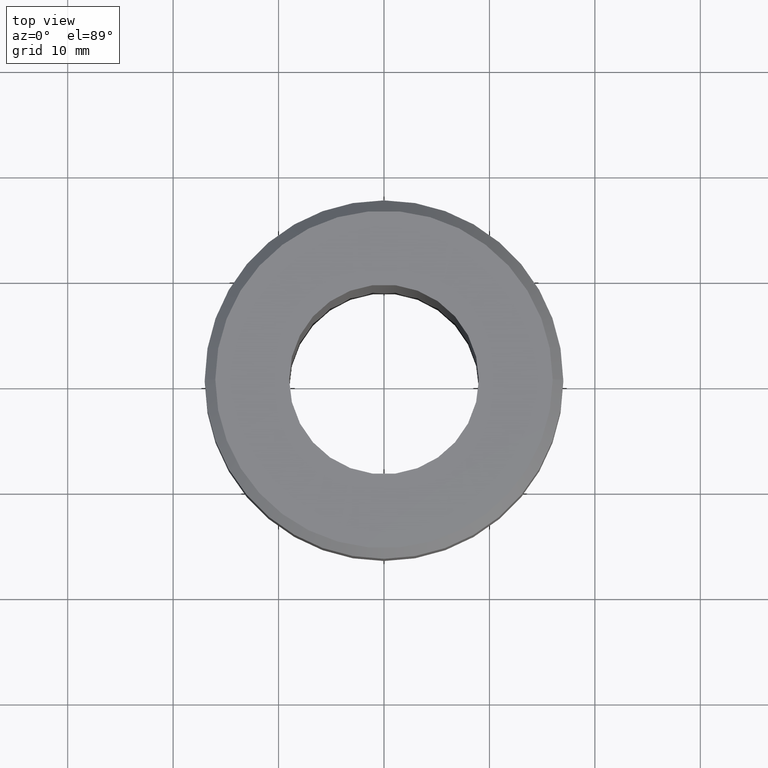
[diagram: clean part render]
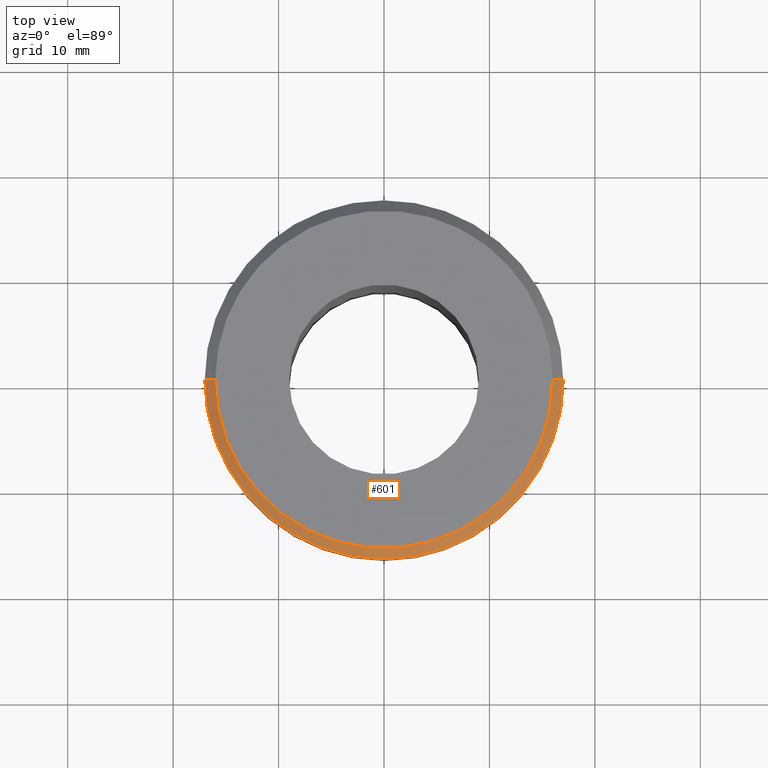
[diagram: same view with one face highlighted and labeled with its STEP entity id]
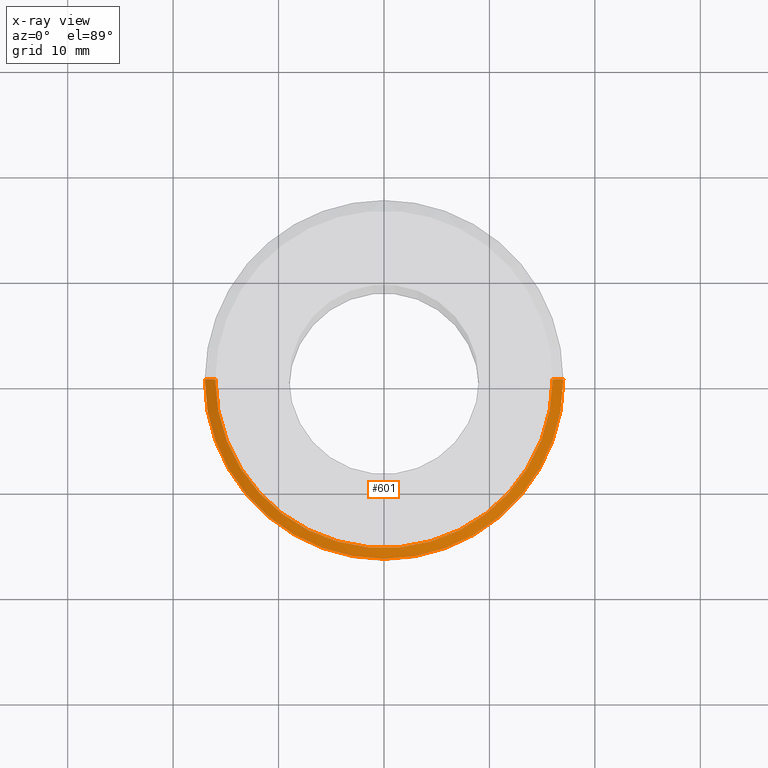
[diagram: x-ray of the same camera — body ghosted, the highlighted face saturated]
A machine part, top view. The second image highlights one B-rep face of the part: STEP entity #601.
The next image is the same camera in x-ray: the body ghosted, the highlighted face saturated — about 0% of this face is hidden behind the body in this view.
In plain terms, the highlighted conical surface has half-angle 45 deg.
Its self-contained STEP definition (entity closure, byte-faithful):
#11 = ORIENTED_EDGE ( 'NONE', *, *, #467, .F. ) ;
#46 = CONICAL_SURFACE ( 'NONE', #580, 16.00000000000000000, 0.7853981633974500554 ) ;
#71 = VERTEX_POINT ( 'NONE', #470 ) ;
#73 = DIRECTION ( 'NONE',  ( 1.000000000000000000, 0.000000000000000000, 0.000000000000000000 ) ) ;
#83 = DIRECTION ( 'NONE',  ( 0.000000000000000000, 0.000000000000000000, -1.000000000000000000 ) ) ;
#96 = VECTOR ( 'NONE', #762, 1000.000000000000000 ) ;
#97 = VECTOR ( 'NONE', #618, 1000.000000000000000 ) ;
#99 = DIRECTION ( 'NONE',  ( -1.000000000000000000, 0.000000000000000000, 0.000000000000000000 ) ) ;
#119 = CARTESIAN_POINT ( 'NONE',  ( -17.00000000000000000, 2.081899558550500280E-15, -0.9999999999999974465 ) ) ;
#145 = CIRCLE ( 'NONE', #592, 17.00000000000000000 ) ;
#198 = AXIS2_PLACEMENT_3D ( 'NONE', #213, #472, #702 ) ;
#208 = ORIENTED_EDGE ( 'NONE', *, *, #642, .F. ) ;
#213 = CARTESIAN_POINT ( 'NONE',  ( 0.000000000000000000, 0.000000000000000000, 0.000000000000000000 ) ) ;
#313 = ORIENTED_EDGE ( 'NONE', *, *, #619, .T. ) ;
#339 = CARTESIAN_POINT ( 'NONE',  ( 17.00000000000000000, 0.000000000000000000, -0.9999999999999974465 ) ) ;
#351 = LINE ( 'NONE', #528, #96 ) ;
#379 = CARTESIAN_POINT ( 'NONE',  ( 16.00000000000000000, 1.959434878635765131E-15, 0.000000000000000000 ) ) ;
#388 = VERTEX_POINT ( 'NONE', #609 ) ;
#401 = VERTEX_POINT ( 'NONE', #119 ) ;
#437 = LINE ( 'NONE', #379, #97 ) ;
#452 = EDGE_LOOP ( 'NONE', ( #11, #208, #313, #691 ) ) ;
#461 = FACE_OUTER_BOUND ( 'NONE', #452, .T. ) ;
#467 = EDGE_CURVE ( 'NONE', #71, #671, #437, .T. ) ;
#470 = CARTESIAN_POINT ( 'NONE',  ( 16.00000000000000000, 2.020667218593133100E-15, 0.000000000000000000 ) ) ;
#472 = DIRECTION ( 'NONE',  ( -0.000000000000000000, -0.000000000000000000, 1.000000000000000000 ) ) ;
#528 = CARTESIAN_POINT ( 'NONE',  ( -16.00000000000000000, 0.000000000000000000, 0.000000000000000000 ) ) ;
#580 = AXIS2_PLACEMENT_3D ( 'NONE', #649, #664, #99 ) ;
#592 = AXIS2_PLACEMENT_3D ( 'NONE', #631, #83, #73 ) ;
#601 = ADVANCED_FACE ( 'NONE', ( #461 ), #46, .T. ) ;
#609 = CARTESIAN_POINT ( 'NONE',  ( -16.00000000000000000, 0.000000000000000000, 0.000000000000000000 ) ) ;
#618 = DIRECTION ( 'NONE',  ( 0.7071067811865487940, 8.659560562354950115E-17, -0.7071067811865463515 ) ) ;
#619 = EDGE_CURVE ( 'NONE', #388, #401, #351, .T. ) ;
#631 = CARTESIAN_POINT ( 'NONE',  ( 0.000000000000000000, 0.000000000000000000, -0.9999999999999974465 ) ) ;
#642 = EDGE_CURVE ( 'NONE', #388, #71, #733, .T. ) ;
#649 = CARTESIAN_POINT ( 'NONE',  ( 0.000000000000000000, 0.000000000000000000, 0.000000000000000000 ) ) ;
#664 = DIRECTION ( 'NONE',  ( 0.000000000000000000, 0.000000000000000000, -1.000000000000000000 ) ) ;
#671 = VERTEX_POINT ( 'NONE', #339 ) ;
#691 = ORIENTED_EDGE ( 'NONE', *, *, #789, .F. ) ;
#702 = DIRECTION ( 'NONE',  ( 1.000000000000000000, 0.000000000000000000, 0.000000000000000000 ) ) ;
#733 = CIRCLE ( 'NONE', #198, 16.00000000000000000 ) ;
#762 = DIRECTION ( 'NONE',  ( -0.7071067811865487940, 0.000000000000000000, -0.7071067811865463515 ) ) ;
#789 = EDGE_CURVE ( 'NONE', #671, #401, #145, .T. ) ;